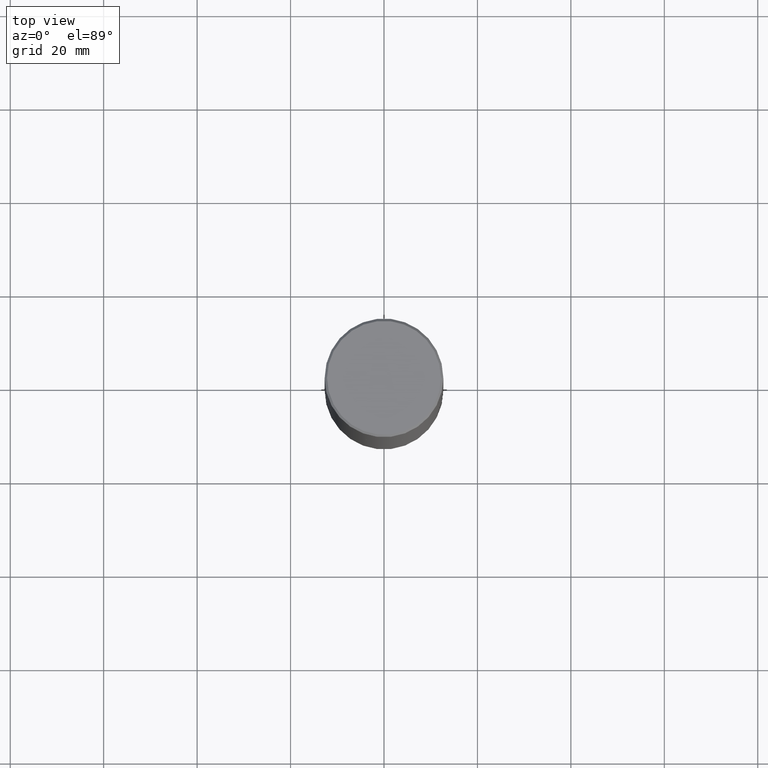
[diagram: clean part render]
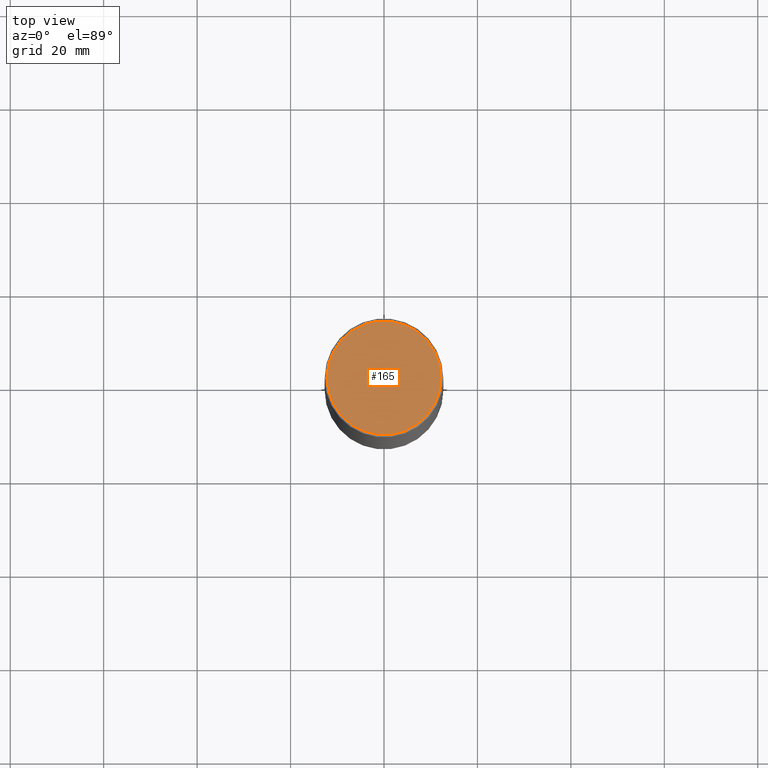
[diagram: same view with one face highlighted and labeled with its STEP entity id]
A machine part, top view. The second image highlights one B-rep face of the part: STEP entity #165.
In plain terms, the highlighted planar face has unit normal (0, -0, -1).
Its self-contained STEP definition (entity closure, byte-faithful):
#10 = CARTESIAN_POINT ( 'NONE',  ( -0.4799999999999989275, 3.386736898677831703E-15, 1.280553747027767124E-17 ) ) ;
#25 = DIRECTION ( 'NONE',  ( -2.445468806185136597E-29, 3.491481338843145583E-15, 1.000000000000000000 ) ) ;
#37 = ORIENTED_EDGE ( 'NONE', *, *, #286, .T. ) ;
#80 = EDGE_CURVE ( 'NONE', #424, #466, #398, .T. ) ;
#92 = AXIS2_PLACEMENT_3D ( 'NONE', #358, #96, #245 ) ;
#96 = DIRECTION ( 'NONE',  ( 2.438088387897960049E-29, -3.491481338843145188E-15, -1.000000000000000000 ) ) ;
#125 = CARTESIAN_POINT ( 'NONE',  ( 0.4799999999999989275, -3.396558832296475394E-15, 1.280553747032483033E-17 ) ) ;
#165 = ADVANCED_FACE ( 'NONE', ( #202 ), #436, .F. ) ;
#169 = AXIS2_PLACEMENT_3D ( 'NONE', #425, #304, #238 ) ;
#189 = AXIS2_PLACEMENT_3D ( 'NONE', #321, #25, #477 ) ;
#202 = FACE_OUTER_BOUND ( 'NONE', #385, .T. ) ;
#238 = DIRECTION ( 'NONE',  ( 1.000000000000000000, -6.982962677686266711E-15, 4.876036955247140054E-29 ) ) ;
#242 = CIRCLE ( 'NONE', #169, 0.4799999999999989275 ) ;
#245 = DIRECTION ( 'NONE',  ( -1.000000000000000000, 6.982962677686265922E-15, -4.876176775795935793E-29 ) ) ;
#286 = EDGE_CURVE ( 'NONE', #466, #424, #242, .T. ) ;
#304 = DIRECTION ( 'NONE',  ( -2.445468806185136597E-29, 3.491481338843145583E-15, 1.000000000000000000 ) ) ;
#307 = ORIENTED_EDGE ( 'NONE', *, *, #80, .T. ) ;
#321 = CARTESIAN_POINT ( 'NONE',  ( -3.131554243005659264E-46, 4.471029511141341874E-32, 1.280553747030123384E-17 ) ) ;
#358 = CARTESIAN_POINT ( 'NONE',  ( 3.351822085289400054E-15, 0.4799999999999989275, -1.669508273909555500E-15 ) ) ;
#385 = EDGE_LOOP ( 'NONE', ( #37, #307 ) ) ;
#398 = CIRCLE ( 'NONE', #189, 0.4799999999999989275 ) ;
#424 = VERTEX_POINT ( 'NONE', #125 ) ;
#425 = CARTESIAN_POINT ( 'NONE',  ( -3.131554243005659264E-46, 4.471029511141341874E-32, 1.280553747030123384E-17 ) ) ;
#436 = PLANE ( 'NONE',  #92 ) ;
#466 = VERTEX_POINT ( 'NONE', #10 ) ;
#477 = DIRECTION ( 'NONE',  ( 1.000000000000000000, -6.982962677686266711E-15, 4.876036955247140054E-29 ) ) ;